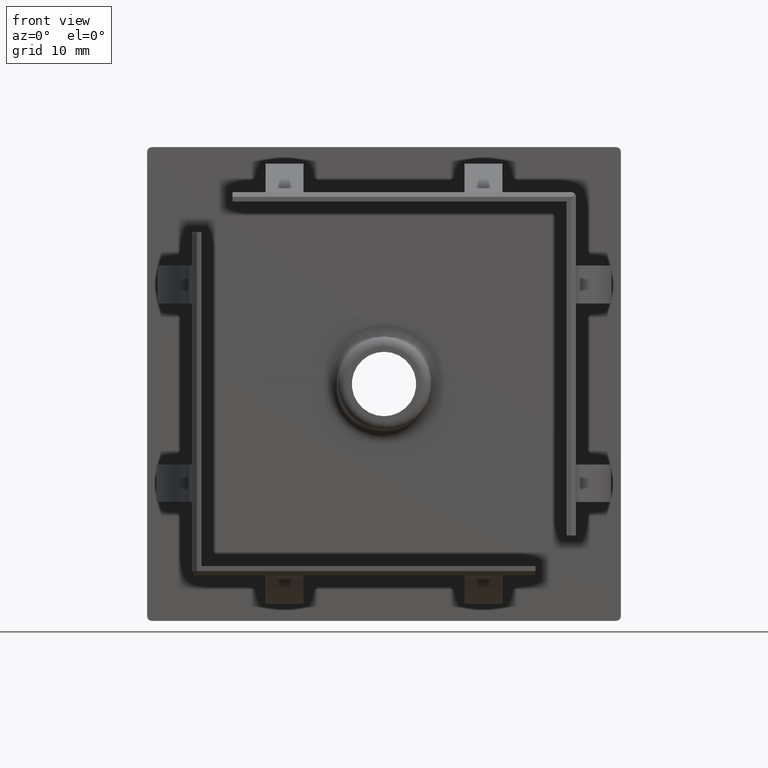
[diagram: clean part render]
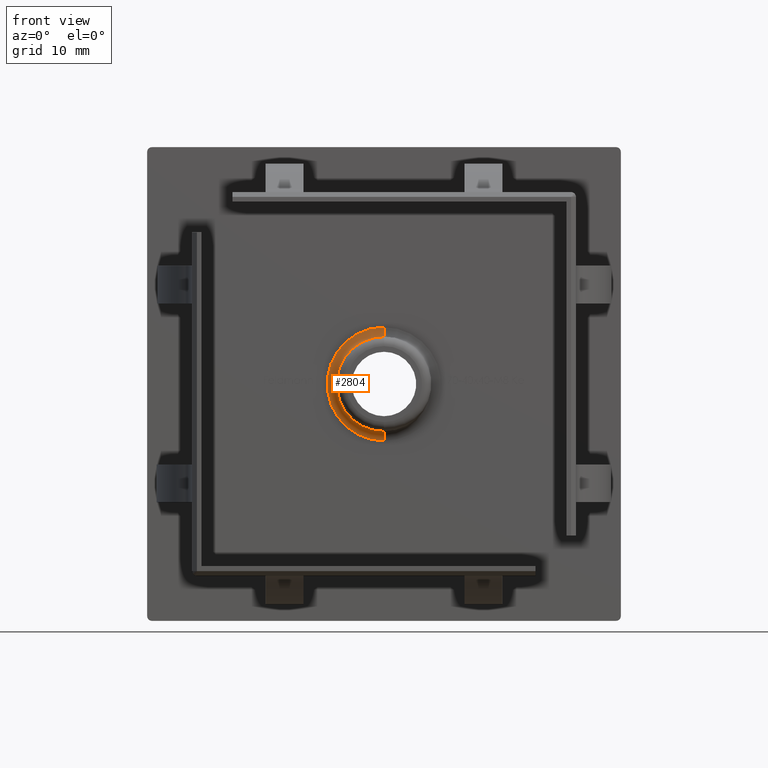
[diagram: same view with one face highlighted and labeled with its STEP entity id]
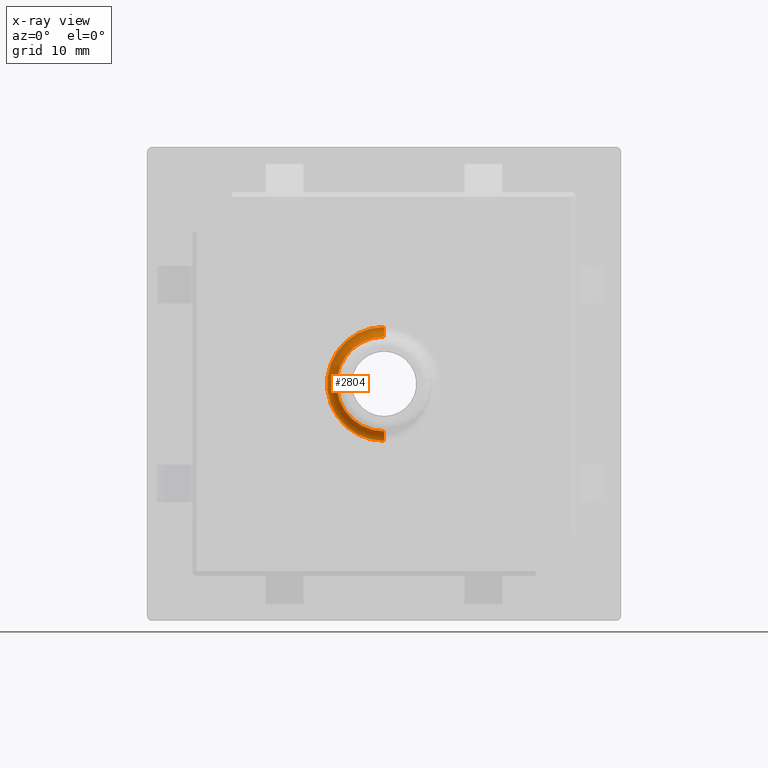
[diagram: x-ray of the same camera — body ghosted, the highlighted face saturated]
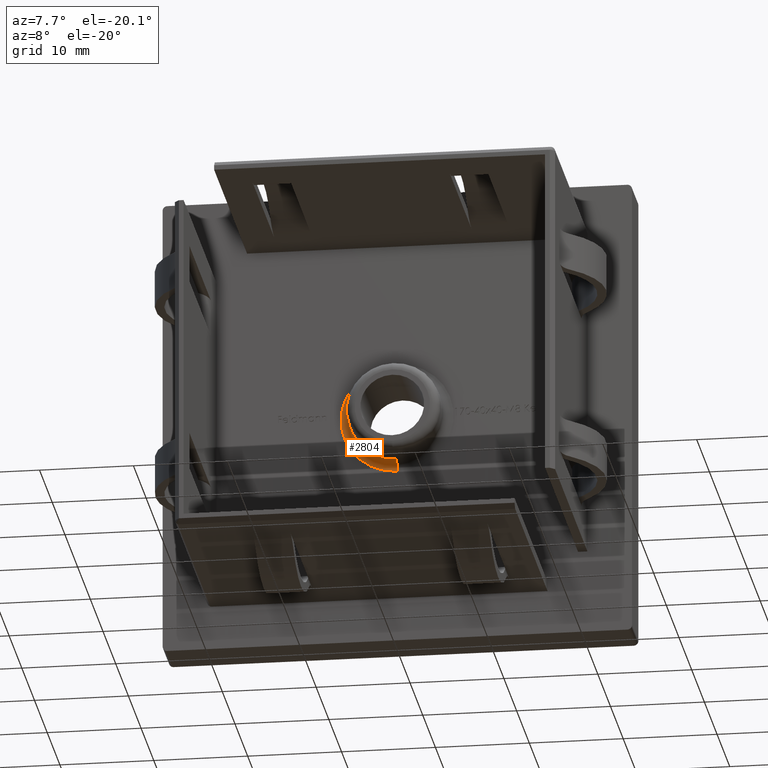
[diagram: same view with one face highlighted and labeled with its STEP entity id]
A machine part, front view. The second image highlights one B-rep face of the part: STEP entity #2804.
The next image is the same camera in x-ray: the body ghosted, the highlighted face saturated — about 0% of this face is hidden behind the body in this view.
A second angle (auxiliary view) of the same face is appended — the face is thin or edge-on in the first view.
In plain terms, the highlighted toroidal blend (fillet) surface has major radius 6 mm and minor (blend) radius 1 mm.
Its self-contained STEP definition (entity closure, byte-faithful):
#1250 = EDGE_CURVE ( 'NONE', #6603, #18476, #5078, .T. ) ;
#1854 = AXIS2_PLACEMENT_3D ( 'NONE', #8128, #2199, #6503 ) ;
#2199 = DIRECTION ( 'NONE',  ( 0.0000000000000000000, 1.000000000000000000, 0.0000000000000000000 ) ) ;
#2409 = CARTESIAN_POINT ( 'NONE',  ( 0.0000000000000000000, -1.000000000000000000, 5.000000000000000000 ) ) ;
#2804 = ADVANCED_FACE ( 'NONE', ( #8861 ), #4111, .F. ) ;
#3216 = ORIENTED_EDGE ( 'NONE', *, *, #16113, .F. ) ;
#4111 = TOROIDAL_SURFACE ( 'NONE', #1854, 6.000000000000000000, 1.000000000000000000 ) ;
#4281 = CARTESIAN_POINT ( 'NONE',  ( 7.347880794884119700E-016, -1.000000000000000000, -6.000000000000000000 ) ) ;
#5078 = CIRCLE ( 'NONE', #6929, 6.000000000000000000 ) ;
#6095 = CARTESIAN_POINT ( 'NONE',  ( 7.347880794884119700E-016, 0.0000000000000000000, -6.000000000000000000 ) ) ;
#6104 = AXIS2_PLACEMENT_3D ( 'NONE', #10687, #12137, #6538 ) ;
#6503 = DIRECTION ( 'NONE',  ( 0.0000000000000000000, 0.0000000000000000000, 1.000000000000000000 ) ) ;
#6514 = CARTESIAN_POINT ( 'NONE',  ( 0.0000000000000000000, 0.0000000000000000000, 6.000000000000000000 ) ) ;
#6538 = DIRECTION ( 'NONE',  ( 0.0000000000000000000, 0.0000000000000000000, 1.000000000000000000 ) ) ;
#6603 = VERTEX_POINT ( 'NONE', #6095 ) ;
#6606 = DIRECTION ( 'NONE',  ( 0.0000000000000000000, 0.0000000000000000000, 1.000000000000000000 ) ) ;
#6929 = AXIS2_PLACEMENT_3D ( 'NONE', #9361, #16858, #10790 ) ;
#7217 = CIRCLE ( 'NONE', #6104, 1.000000000000000000 ) ;
#7269 = EDGE_LOOP ( 'NONE', ( #9587, #14540, #17538, #3216 ) ) ;
#7274 = CIRCLE ( 'NONE', #11996, 1.000000000000000000 ) ;
#8103 = VERTEX_POINT ( 'NONE', #18191 ) ;
#8128 = CARTESIAN_POINT ( 'NONE',  ( 0.0000000000000000000, -1.000000000000000000, 0.0000000000000000000 ) ) ;
#8861 = FACE_OUTER_BOUND ( 'NONE', #7269, .T. ) ;
#9361 = CARTESIAN_POINT ( 'NONE',  ( 0.0000000000000000000, 0.0000000000000000000, 0.0000000000000000000 ) ) ;
#9587 = ORIENTED_EDGE ( 'NONE', *, *, #1250, .F. ) ;
#10256 = EDGE_CURVE ( 'NONE', #18215, #8103, #18466, .T. ) ;
#10687 = CARTESIAN_POINT ( 'NONE',  ( 0.0000000000000000000, -1.000000000000000000, 6.000000000000000000 ) ) ;
#10790 = DIRECTION ( 'NONE',  ( 0.0000000000000000000, 0.0000000000000000000, 1.000000000000000000 ) ) ;
#11996 = AXIS2_PLACEMENT_3D ( 'NONE', #4281, #13158, #17341 ) ;
#12137 = DIRECTION ( 'NONE',  ( -1.000000000000000000, 0.0000000000000000000, 0.0000000000000000000 ) ) ;
#12389 = DIRECTION ( 'NONE',  ( -0.0000000000000000000, -1.000000000000000000, -0.0000000000000000000 ) ) ;
#13158 = DIRECTION ( 'NONE',  ( 1.000000000000000000, -0.0000000000000000000, 1.224646799147353200E-016 ) ) ;
#13281 = AXIS2_PLACEMENT_3D ( 'NONE', #17882, #12389, #6606 ) ;
#14475 = EDGE_CURVE ( 'NONE', #6603, #8103, #7274, .T. ) ;
#14540 = ORIENTED_EDGE ( 'NONE', *, *, #14475, .T. ) ;
#16113 = EDGE_CURVE ( 'NONE', #18476, #18215, #7217, .T. ) ;
#16858 = DIRECTION ( 'NONE',  ( 0.0000000000000000000, 1.000000000000000000, 0.0000000000000000000 ) ) ;
#17341 = DIRECTION ( 'NONE',  ( 1.224646799147353500E-016, 0.0000000000000000000, -1.000000000000000000 ) ) ;
#17538 = ORIENTED_EDGE ( 'NONE', *, *, #10256, .F. ) ;
#17882 = CARTESIAN_POINT ( 'NONE',  ( 0.0000000000000000000, -1.000000000000000000, 0.0000000000000000000 ) ) ;
#18191 = CARTESIAN_POINT ( 'NONE',  ( 6.123233995736766300E-016, -1.000000000000000000, -5.000000000000000000 ) ) ;
#18215 = VERTEX_POINT ( 'NONE', #2409 ) ;
#18466 = CIRCLE ( 'NONE', #13281, 5.000000000000000000 ) ;
#18476 = VERTEX_POINT ( 'NONE', #6514 ) ;